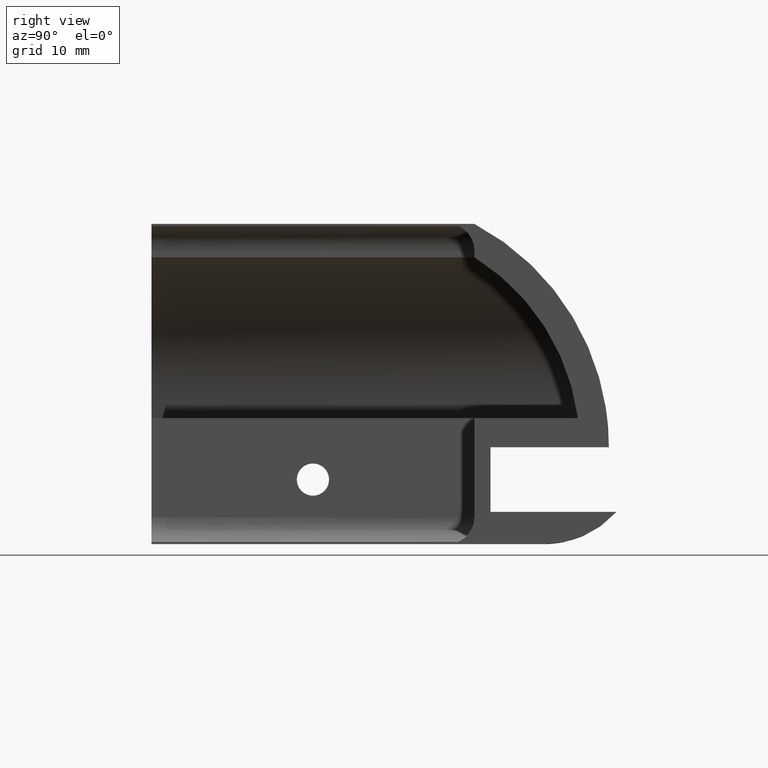
[diagram: clean part render]
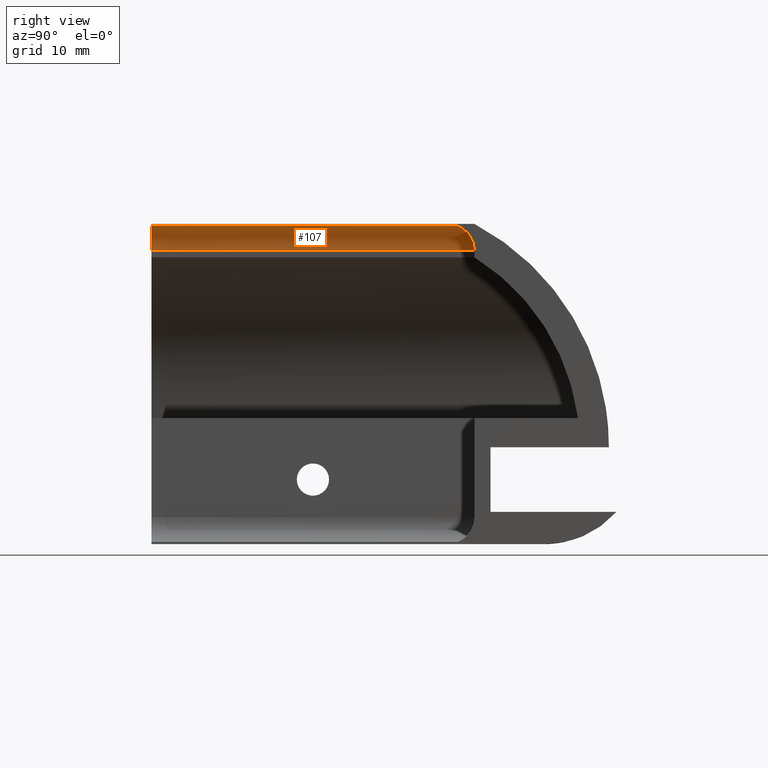
[diagram: same view with one face highlighted and labeled with its STEP entity id]
A machine part, right view. The second image highlights one B-rep face of the part: STEP entity #107.
In plain terms, the highlighted cylindrical surface (edge-blend (fillet) strip) has radius 2.5 mm, axis along (0, 1, -0).
Its self-contained STEP definition (entity closure, byte-faithful):
#50=CARTESIAN_POINT('',(-1.500000000000000,1.500000000000098,27.266559657392918));
#51=VERTEX_POINT('',#50);
#58=CARTESIAN_POINT('',(-1.500000000000000,-28.499999999999858,27.266559657392921));
#59=VERTEX_POINT('',#58);
#60=CARTESIAN_POINT('',(-1.500000000000000,1.500000000000100,27.266559657392918));
#61=DIRECTION('',(0.0,-1.0,0.0));
#62=VECTOR('',#61,29.999999999999950);
#63=LINE('',#60,#62);
#64=EDGE_CURVE('',#51,#59,#63,.T.);
#75=CARTESIAN_POINT('',(0.999999999817646,16.000000000000149,27.266559657392918));
#76=DIRECTION('',(0.0,1.0,-6.123234E-017));
#77=DIRECTION('',(-1.0,0.0,0.0));
#78=AXIS2_PLACEMENT_3D('',#75,#76,#77);
#79=CYLINDRICAL_SURFACE('',#78,2.499999999817598);
#80=ORIENTED_EDGE('',*,*,#64,.F.);
#81=CARTESIAN_POINT('',(2.000888E-011,-1.993250E-011,29.557847504760161));
#82=VERTEX_POINT('',#81);
#83=CARTESIAN_POINT('',(0.999999999817646,-0.999999999817679,27.266559657392918));
#84=DIRECTION('',(0.707106781186548,0.707106781186547,-4.329780E-017));
#85=DIRECTION('',(0.707106781186547,-0.707106781186548,4.329780E-017));
#86=AXIS2_PLACEMENT_3D('',#83,#84,#85);
#87=ELLIPSE('',#86,3.535533905674784,2.499999999817598);
#88=EDGE_CURVE('',#51,#82,#87,.T.);
#89=ORIENTED_EDGE('',*,*,#88,.T.);
#90=CARTESIAN_POINT('',(2.000888E-011,-28.499999999999858,29.557847504760165));
#91=VERTEX_POINT('',#90);
#92=CARTESIAN_POINT('',(2.000888E-011,-1.993072E-011,29.557847504760161));
#93=DIRECTION('',(0.0,-1.0,0.0));
#94=VECTOR('',#93,28.499999999979920);
#95=LINE('',#92,#94);
#96=EDGE_CURVE('',#82,#91,#95,.T.);
#97=ORIENTED_EDGE('',*,*,#96,.T.);
#98=CARTESIAN_POINT('',(0.999999999817646,-28.499999999999858,27.266559657392921));
#99=DIRECTION('',(0.0,1.0,-6.123234E-017));
#100=DIRECTION('',(-1.0,0.0,0.0));
#101=AXIS2_PLACEMENT_3D('',#98,#99,#100);
#102=CIRCLE('',#101,2.499999999817598);
#103=EDGE_CURVE('',#59,#91,#102,.T.);
#104=ORIENTED_EDGE('',*,*,#103,.F.);
#105=EDGE_LOOP('',(#80,#89,#97,#104));
#106=FACE_OUTER_BOUND('',#105,.T.);
#107=ADVANCED_FACE('',(#106),#79,.F.);